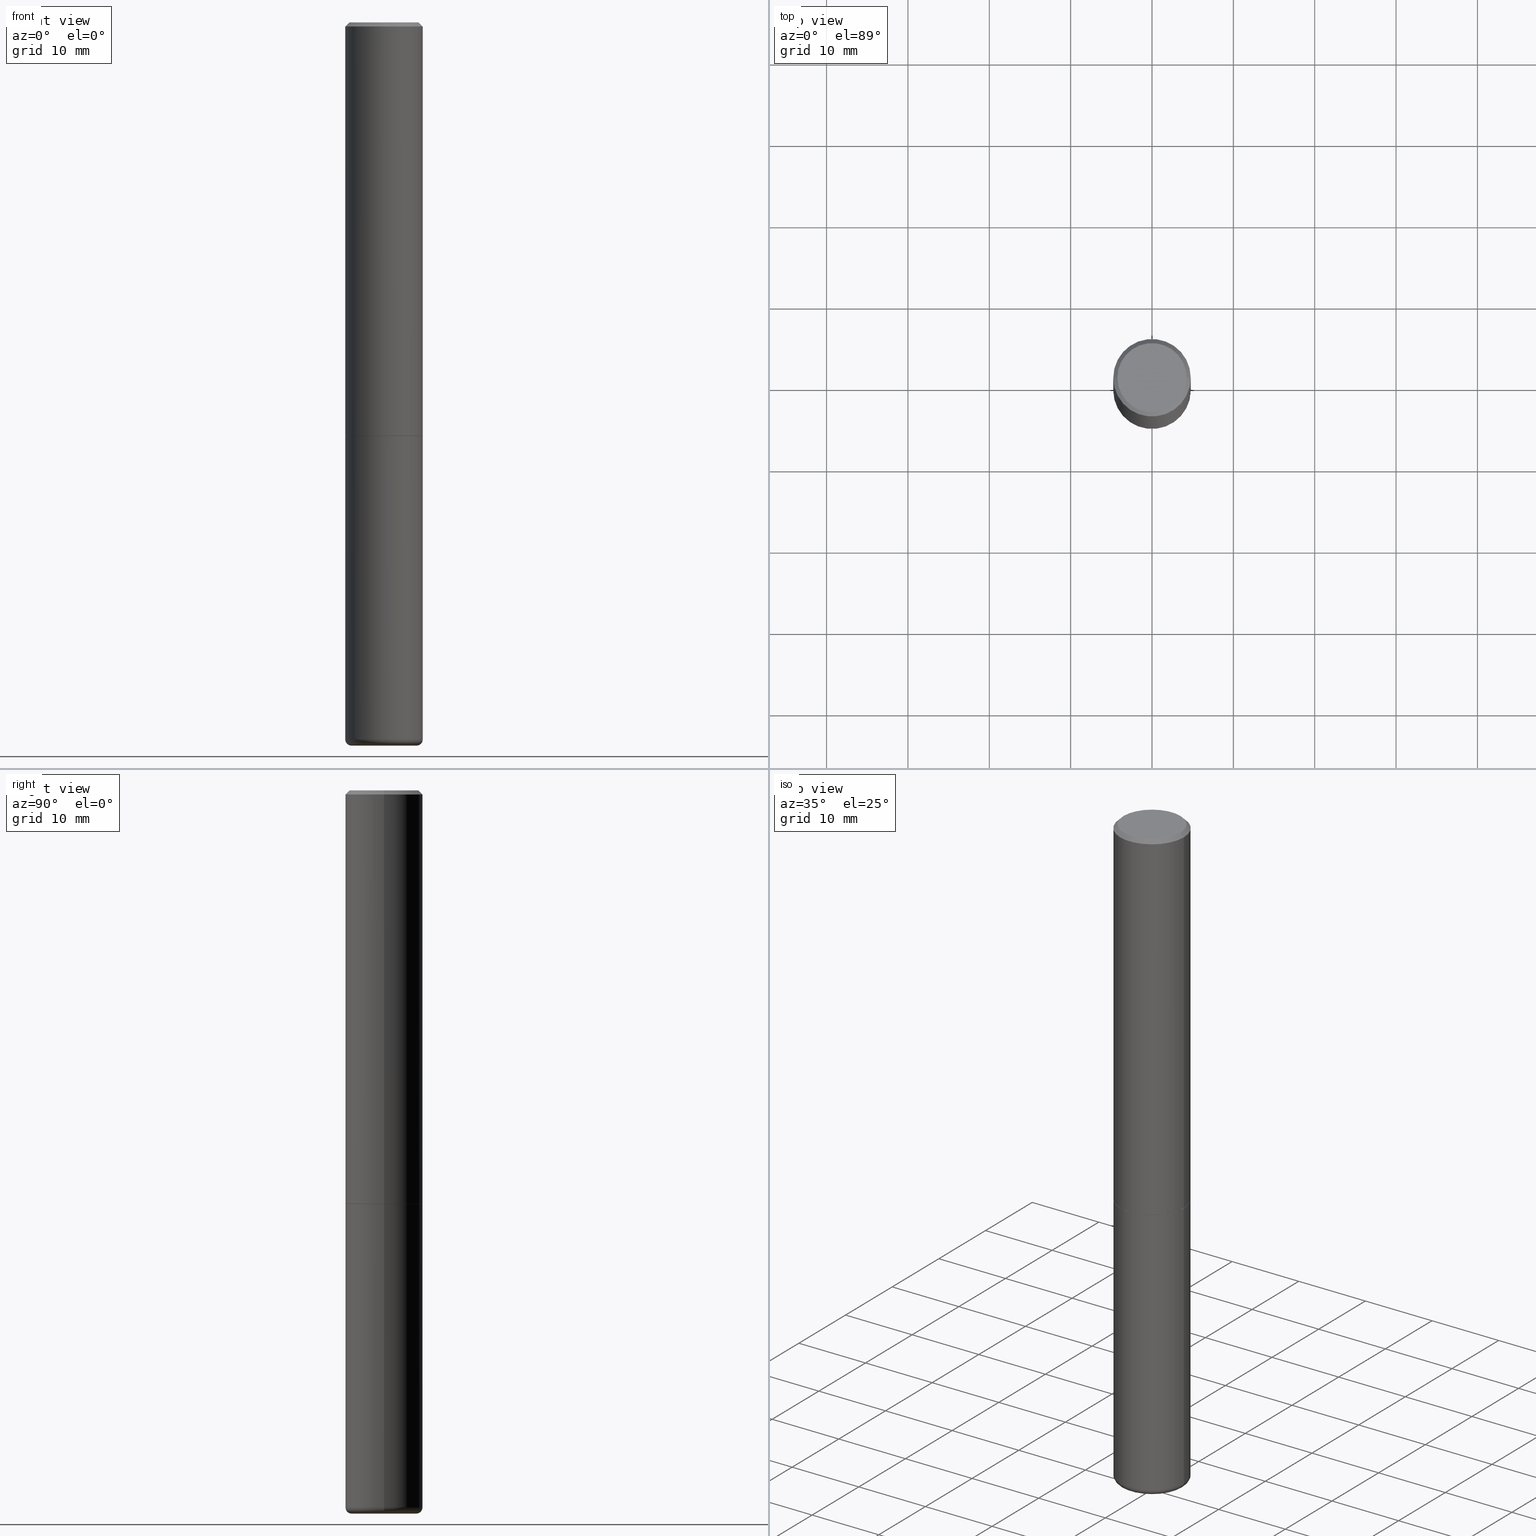
[diagram: canonical four-view strip — front | top / right | iso, engineering-drawing reading convention]
A machine part, canonical four-view strip (front | top / right | iso — engineering-drawing reading convention). The complete STEP part file that produces these views, byte-faithful:
ISO-10303-21;
HEADER;
FILE_DESCRIPTION (( 'STEP AP203' ),
    '1' );
FILE_NAME ('77171.STEP',
    '2024-03-06T16:16:29',
    ( '' ),
    ( '' ),
    'SwSTEP 2.0',
    'SolidWorks 2023',
    '' );
FILE_SCHEMA (( 'CONFIG_CONTROL_DESIGN' ));
ENDSEC;

DATA;
#1 = LINE ( 'NONE', #126, #357 ) ;
#2 = EDGE_CURVE ( 'NONE', #250, #55, #312, .T. ) ;
#3 = VERTEX_POINT ( 'NONE', #235 ) ;
#4 = CARTESIAN_POINT ( 'NONE',  ( 4.890937612370272633E-29, -6.982962677686290376E-15, -1.999999999999999778 ) ) ;
#5 = DATE_AND_TIME ( #254, #306 ) ;
#6 = ADVANCED_BREP_SHAPE_REPRESENTATION ( '77171', ( #276, #275, #336 ), #118 ) ;
#7 = DATE_TIME_ROLE ( 'classification_date' ) ;
#8 = ADVANCED_FACE ( 'NONE', ( #213 ), #304, .T. ) ;
#9 = CIRCLE ( 'NONE', #418, 0.1865000000000000546 ) ;
#10 = DIRECTION ( 'NONE',  ( -2.445468806185136597E-29, 3.491481338843145583E-15, 1.000000000000000000 ) ) ;
#11 = DIRECTION ( 'NONE',  ( -2.438088387897960049E-29, 3.491481338843145188E-15, 1.000000000000000000 ) ) ;
#12 = DIRECTION ( 'NONE',  ( 1.000000000000000000, -6.982962677686261189E-15, 0.000000000000000000 ) ) ;
#13 = VECTOR ( 'NONE', #394, 39.37007874015748143 ) ;
#14 = CARTESIAN_POINT ( 'NONE',  ( -0.1575000000000000289, -1.099633543696355521E-14, -3.469999999999999751 ) ) ;
#15 = FACE_OUTER_BOUND ( 'NONE', #153, .T. ) ;
#16 = APPLICATION_PROTOCOL_DEFINITION ( 'international standard', 'config_control_design', 1994, #381 ) ;
#17 = AXIS2_PLACEMENT_3D ( 'NONE', #110, #214, #148 ) ;
#18 = CARTESIAN_POINT ( 'NONE',  ( 0.1675000000000000655, -1.252653207992878880E-15, -3.414809992079482230E-17 ) ) ;
#19 = CARTESIAN_POINT ( 'NONE',  ( -0.1875000000000000555, 1.239475875289312104E-15, -0.02000000000000003858 ) ) ;
#20 = DIRECTION ( 'NONE',  ( -2.445468806185136597E-29, 3.491481338843145583E-15, 1.000000000000000000 ) ) ;
#21 = ORIENTED_EDGE ( 'NONE', *, *, #2, .F. ) ;
#22 = LINE ( 'NONE', #19, #281 ) ;
#23 = AXIS2_PLACEMENT_3D ( 'NONE', #303, #365, #166 ) ;
#24 = ORIENTED_EDGE ( 'NONE', *, *, #280, .F. ) ;
#25 = FACE_OUTER_BOUND ( 'NONE', #154, .T. ) ;
#26 = ORIENTED_EDGE ( 'NONE', *, *, #130, .F. ) ;
#27 = DIRECTION ( 'NONE',  ( -2.445468806185136597E-29, 3.491481338843145583E-15, 1.000000000000000000 ) ) ;
#28 = ORIENTED_EDGE ( 'NONE', *, *, #343, .T. ) ;
#29 = ORIENTED_EDGE ( 'NONE', *, *, #308, .T. ) ;
#30 = CC_DESIGN_DATE_AND_TIME_ASSIGNMENT ( #351, #7, ( #377 ) ) ;
#31 = CARTESIAN_POINT ( 'NONE',  ( -0.1675000000000000655, 1.204561061900881244E-15, -3.414809992081159176E-17 ) ) ;
#32 = CARTESIAN_POINT ( 'NONE',  ( 8.485776757462424574E-29, -1.211544024578571439E-14, -3.469999999999999751 ) ) ;
#33 = ORIENTED_EDGE ( 'NONE', *, *, #301, .T. ) ;
#34 = CIRCLE ( 'NONE', #411, 0.1875000000000000555 ) ;
#35 = CARTESIAN_POINT ( 'NONE',  ( 8.559140821647976968E-29, -1.222018468595100619E-14, -3.499999999999999112 ) ) ;
#36 = DIRECTION ( 'NONE',  ( -2.445468806185136597E-29, 3.491481338843145583E-15, 1.000000000000000000 ) ) ;
#37 = FACE_OUTER_BOUND ( 'NONE', #245, .T. ) ;
#38 = AXIS2_PLACEMENT_3D ( 'NONE', #53, #191, #410 ) ;
#39 = DIRECTION ( 'NONE',  ( -2.445468806185136597E-29, 3.491481338843145583E-15, 1.000000000000000000 ) ) ;
#40 = DIRECTION ( 'NONE',  ( 1.000000000000000000, -6.982962677686265922E-15, 4.876176775795935793E-29 ) ) ;
#41 = CIRCLE ( 'NONE', #178, 0.1875000000000000278 ) ;
#42 = APPROVAL_PERSON_ORGANIZATION ( #287, #400, #392 ) ;
#43 = DIRECTION ( 'NONE',  ( 7.105427357601001859E-15, 1.000000000000000000, -3.491481338843145583E-15 ) ) ;
#44 = ORIENTED_EDGE ( 'NONE', *, *, #280, .T. ) ;
#45 = LINE ( 'NONE', #175, #151 ) ;
#46 = ORIENTED_EDGE ( 'NONE', *, *, #88, .T. ) ;
#47 = AXIS2_PLACEMENT_3D ( 'NONE', #87, #50, #93 ) ;
#48 = ADVANCED_FACE ( 'NONE', ( #341 ), #49, .T. ) ;
#49 = CYLINDRICAL_SURFACE ( 'NONE', #239, 0.1875000000000000278 ) ;
#50 = DIRECTION ( 'NONE',  ( 2.445468806185136597E-29, -3.491481338843145583E-15, -1.000000000000000000 ) ) ;
#51 = EDGE_CURVE ( 'NONE', #288, #52, #22, .T. ) ;
#52 = VERTEX_POINT ( 'NONE', #309 ) ;
#53 = CARTESIAN_POINT ( 'NONE',  ( 4.890937612370272633E-29, -6.982962677686290376E-15, -1.999999999999999778 ) ) ;
#54 = CIRCLE ( 'NONE', #17, 0.02999999999999967970 ) ;
#55 = VERTEX_POINT ( 'NONE', #374 ) ;
#56 = CARTESIAN_POINT ( 'NONE',  ( 0.1875000000000000555, -1.356173001359025663E-15, -0.02000000000000003858 ) ) ;
#57 = PRODUCT_DEFINITION_SHAPE ( 'NONE', 'NONE',  #368 ) ;
#58 = EDGE_CURVE ( 'NONE', #55, #237, #409, .T. ) ;
#59 = ORIENTED_EDGE ( 'NONE', *, *, #387, .T. ) ;
#60 = CARTESIAN_POINT ( 'NONE',  ( -0.1875000000000000278, -8.216933832185813748E-15, -1.999999999999999778 ) ) ;
#61 = VERTEX_POINT ( 'NONE', #401 ) ;
#62 = EDGE_LOOP ( 'NONE', ( #320, #388, #149, #353 ) ) ;
#63 = DIRECTION ( 'NONE',  ( 1.000000000000000000, -6.982962677686266711E-15, 0.000000000000000000 ) ) ;
#64 = VECTOR ( 'NONE', #108, 39.37007874015748143 ) ;
#65 = VERTEX_POINT ( 'NONE', #273 ) ;
#66 = AXIS2_PLACEMENT_3D ( 'NONE', #208, #244, #342 ) ;
#67 = DIRECTION ( 'NONE',  ( 1.000000000000000000, -6.982962677686266711E-15, 4.876176775795936914E-29 ) ) ;
#68 = DIRECTION ( 'NONE',  ( -2.445468806185136597E-29, 3.491481338843145583E-15, 1.000000000000000000 ) ) ;
#69 = VECTOR ( 'NONE', #71, 39.37007874015748143 ) ;
#70 = APPLICATION_PROTOCOL_DEFINITION ( 'international standard', 'config_control_design', 1994, #283 ) ;
#71 = DIRECTION ( 'NONE',  ( -2.445468806185136877E-29, 3.491481338843145188E-15, 1.000000000000000000 ) ) ;
#72 = PERSON_AND_ORGANIZATION ( #248, #102 ) ;
#73 = DIRECTION ( 'NONE',  ( -2.445468806185136597E-29, 3.491481338843145583E-15, 1.000000000000000000 ) ) ;
#74 = CIRCLE ( 'NONE', #383, 0.1575000000000000289 ) ;
#75 = APPROVAL_PERSON_ORGANIZATION ( #72, #202, #163 ) ;
#76 = DIRECTION ( 'NONE',  ( -2.445468806185136597E-29, 3.491481338843145583E-15, 1.000000000000000000 ) ) ;
#77 = LENGTH_MEASURE_WITH_UNIT ( LENGTH_MEASURE( 0.02539999999999999897 ), #139 );
#78 = DIRECTION ( 'NONE',  ( 1.000000000000000000, -6.982962677686265922E-15, 0.000000000000000000 ) ) ;
#79 = DIRECTION ( 'NONE',  ( 0.7071067811865472397, -7.319954787623254468E-15, -0.7071067811865477948 ) ) ;
#80 = AXIS2_PLACEMENT_3D ( 'NONE', #161, #10, #358 ) ;
#81 = DIRECTION ( 'NONE',  ( 2.445468806185136597E-29, -3.491481338843145583E-15, -1.000000000000000000 ) ) ;
#82 = CARTESIAN_POINT ( 'NONE',  ( 0.1875000000000001388, -1.309305502066175994E-15, 9.142831454617388019E-30 ) ) ;
#83 = VERTEX_POINT ( 'NONE', #242 ) ;
#84 = CARTESIAN_POINT ( 'NONE',  ( 8.350811314681758556E-46, -1.192274536304357760E-31, -3.414809992080329023E-17 ) ) ;
#85 = EDGE_LOOP ( 'NONE', ( #86, #347 ) ) ;
#86 = ORIENTED_EDGE ( 'NONE', *, *, #127, .T. ) ;
#87 = CARTESIAN_POINT ( 'NONE',  ( 4.890937612370282792E-31, -6.982962677686303935E-17, -0.02000000000000003858 ) ) ;
#88 = EDGE_CURVE ( 'NONE', #237, #52, #34, .T. ) ;
#89 = CLOSED_SHELL ( 'NONE', ( #188, #106, #216, #8, #286, #393, #356, #172 ) ) ;
#90 = VECTOR ( 'NONE', #173, 39.37007874015748143 ) ;
#91 = AXIS2_PLACEMENT_3D ( 'NONE', #193, #76, #78 ) ;
#92 = VERTEX_POINT ( 'NONE', #203 ) ;
#93 = DIRECTION ( 'NONE',  ( -1.000000000000000000, 6.982962677686265922E-15, 0.000000000000000000 ) ) ;
#94 = PERSON_AND_ORGANIZATION_ROLE ( 'classification_officer' ) ;
#95 = ORIENTED_EDGE ( 'NONE', *, *, #51, .F. ) ;
#96 = UNCERTAINTY_MEASURE_WITH_UNIT (LENGTH_MEASURE( 1.000000000000000082E-05 ), #238, 'distance_accuracy_value', 'NONE');
#97 = CALENDAR_DATE ( 2024, 6, 3 ) ;
#98 = PERSON_AND_ORGANIZATION_ROLE ( 'creator' ) ;
#99 = VERTEX_POINT ( 'NONE', #18 ) ;
#100 = CIRCLE ( 'NONE', #23, 0.1865000000000000546 ) ;
#101 = EDGE_CURVE ( 'NONE', #61, #215, #54, .T. ) ;
#102 = ORGANIZATION ( 'UNSPECIFIED', 'UNSPECIFIED', '' ) ;
#103 = PERSON_AND_ORGANIZATION ( #248, #102 ) ;
#104 = CARTESIAN_POINT ( 'NONE',  ( 4.890937612370272633E-29, -6.982962677686290376E-15, -1.999999999999999778 ) ) ;
#105 = DIRECTION ( 'NONE',  ( 1.000000000000000000, -6.982962677686265922E-15, 0.000000000000000000 ) ) ;
#106 = ADVANCED_FACE ( 'NONE', ( #170 ), #116, .T. ) ;
#107 = AXIS2_PLACEMENT_3D ( 'NONE', #14, #43, #311 ) ;
#108 = DIRECTION ( 'NONE',  ( 0.7071067811865957564, -2.468850131082761932E-15, 0.7071067811864992780 ) ) ;
#109 = DIRECTION ( 'NONE',  ( -2.445468806185136597E-29, 3.491481338843145583E-15, 1.000000000000000000 ) ) ;
#110 = CARTESIAN_POINT ( 'NONE',  ( 0.1575000000000000289, -1.321525686752130109E-14, -3.469999999999999751 ) ) ;
#111 = FACE_OUTER_BOUND ( 'NONE', #205, .T. ) ;
#112 = CARTESIAN_POINT ( 'NONE',  ( 0.1865000000000000546, -8.285285217074779370E-15, -1.999999999999999778 ) ) ;
#113 = DIRECTION ( 'NONE',  ( 1.000000000000000000, -6.982962677686263555E-15, 4.883557194083111219E-29 ) ) ;
#114 = LINE ( 'NONE', #375, #338 ) ;
#115 = DIRECTION ( 'NONE',  ( -1.000000000000000000, 6.982962677686265922E-15, 0.000000000000000000 ) ) ;
#116 = CYLINDRICAL_SURFACE ( 'NONE', #398, 0.1875000000000001388 ) ;
#117 = AXIS2_PLACEMENT_3D ( 'NONE', #199, #156, #291 ) ;
#118 =( GEOMETRIC_REPRESENTATION_CONTEXT ( 3 ) GLOBAL_UNCERTAINTY_ASSIGNED_CONTEXT ( ( #96 ) ) GLOBAL_UNIT_ASSIGNED_CONTEXT ( ( #238, #207, #310 ) ) REPRESENTATION_CONTEXT ( 'NONE', 'WORKASPACE' ) );
#119 = ORIENTED_EDGE ( 'NONE', *, *, #261, .F. ) ;
#120 = ORIENTED_EDGE ( 'NONE', *, *, #301, .F. ) ;
#121 = CC_DESIGN_PERSON_AND_ORGANIZATION_ASSIGNMENT ( #300, #98, ( #293 ) ) ;
#122 = CARTESIAN_POINT ( 'NONE',  ( 4.890937612370272633E-29, -6.982962677686290376E-15, -1.999999999999999778 ) ) ;
#123 = DIRECTION ( 'NONE',  ( 1.000000000000000000, -6.982962677686265922E-15, 4.875370901645438946E-29 ) ) ;
#124 = CIRCLE ( 'NONE', #403, 0.1675000000000000655 ) ;
#125 = PERSON_AND_ORGANIZATION ( #248, #102 ) ;
#126 = CARTESIAN_POINT ( 'NONE',  ( -0.1875000000000000278, 1.332267629550188046E-15, -9.223003294227947991E-30 ) ) ;
#127 = EDGE_CURVE ( 'NONE', #288, #99, #211, .T. ) ;
#128 = DESIGN_CONTEXT ( 'detailed design', #283, 'design' ) ;
#129 = DIRECTION ( 'NONE',  ( -2.445468806185136597E-29, 3.491481338843145583E-15, 1.000000000000000000 ) ) ;
#130 = EDGE_CURVE ( 'NONE', #65, #52, #45, .T. ) ;
#131 = APPROVAL_DATE_TIME ( #5, #400 ) ;
#132 = TOROIDAL_SURFACE ( 'NONE', #194, 0.1575000000000000289, 0.02999999999999969705 ) ;
#133 = DIRECTION ( 'NONE',  ( 1.000000000000000000, -6.982962677686269077E-15, 0.000000000000000000 ) ) ;
#134 = CC_DESIGN_PERSON_AND_ORGANIZATION_ASSIGNMENT ( #258, #395, ( #355 ) ) ;
#135 = APPROVAL_ROLE ( '' ) ;
#136 = CLOSED_SHELL ( 'NONE', ( #164, #267, #177, #48, #152, #243 ) ) ;
#137 = AXIS2_PLACEMENT_3D ( 'NONE', #362, #268, #133 ) ;
#138 = LOCAL_TIME ( 11, 16, 29.00000000000000000, #292 ) ;
#139 =( LENGTH_UNIT ( ) NAMED_UNIT ( * ) SI_UNIT ( $, .METRE. ) );
#140 = EDGE_CURVE ( 'NONE', #3, #92, #270, .T. ) ;
#141 = DIRECTION ( 'NONE',  ( 1.000000000000000000, -6.982962677686265922E-15, 0.000000000000000000 ) ) ;
#142 = ORIENTED_EDGE ( 'NONE', *, *, #345, .F. ) ;
#143 = CC_DESIGN_PERSON_AND_ORGANIZATION_ASSIGNMENT ( #200, #157, ( #368 ) ) ;
#144 = CIRCLE ( 'NONE', #158, 0.1875000000000002498 ) ;
#145 = CARTESIAN_POINT ( 'NONE',  ( 0.1875000000000000278, -1.309305502066175008E-15, 9.142831454617381013E-30 ) ) ;
#146 = EDGE_LOOP ( 'NONE', ( #318, #190, #417, #379 ) ) ;
#147 = CARTESIAN_POINT ( 'NONE',  ( 0.000000000000000000, 0.000000000000000000, 0.000000000000000000 ) ) ;
#148 = DIRECTION ( 'NONE',  ( 1.000000000000000000, -6.982962677686277755E-15, 0.000000000000000000 ) ) ;
#149 = ORIENTED_EDGE ( 'NONE', *, *, #405, .T. ) ;
#150 = PLANE ( 'NONE',  #321 ) ;
#151 = VECTOR ( 'NONE', #307, 39.37007874015748143 ) ;
#152 = ADVANCED_FACE ( 'NONE', ( #15 ), #389, .T. ) ;
#153 = EDGE_LOOP ( 'NONE', ( #326, #59, #369, #119 ) ) ;
#154 = EDGE_LOOP ( 'NONE', ( #44, #385 ) ) ;
#155 = EDGE_LOOP ( 'NONE', ( #33, #218, #372, #414 ) ) ;
#156 = DIRECTION ( 'NONE',  ( -2.445468806185136597E-29, 3.491481338843145583E-15, 1.000000000000000000 ) ) ;
#157 = PERSON_AND_ORGANIZATION_ROLE ( 'creator' ) ;
#158 = AXIS2_PLACEMENT_3D ( 'NONE', #390, #36, #196 ) ;
#159 = LOCAL_TIME ( 11, 16, 29.00000000000000000, #195 ) ;
#160 = CC_DESIGN_DATE_AND_TIME_ASSIGNMENT ( #386, #224, ( #368 ) ) ;
#161 = CARTESIAN_POINT ( 'NONE',  ( 4.890937612370272633E-29, -6.982962677686290376E-15, -1.999999999999999778 ) ) ;
#162 = CARTESIAN_POINT ( 'NONE',  ( 4.890937612370272633E-29, -6.982962677686290376E-15, -1.999999999999999778 ) ) ;
#163 = APPROVAL_ROLE ( '' ) ;
#164 = ADVANCED_FACE ( 'NONE', ( #111 ), #413, .T. ) ;
#165 = CONICAL_SURFACE ( 'NONE', #278, 0.1865000000000000546, 0.7853981633975165577 ) ;
#166 = DIRECTION ( 'NONE',  ( 1.000000000000000000, -6.982962677686265922E-15, 0.000000000000000000 ) ) ;
#167 = COORDINATED_UNIVERSAL_TIME_OFFSET ( 5, 0, .BEHIND. ) ;
#168 = DIRECTION ( 'NONE',  ( 1.000000000000000000, -6.982962677686261189E-15, 0.000000000000000000 ) ) ;
#169 = AXIS2_PLACEMENT_3D ( 'NONE', #408, #81, #115 ) ;
#170 = FACE_OUTER_BOUND ( 'NONE', #155, .T. ) ;
#171 = AXIS2_PLACEMENT_3D ( 'NONE', #162, #11, #40 ) ;
#172 = ADVANCED_FACE ( 'NONE', ( #212 ), #180, .F. ) ;
#173 = DIRECTION ( 'NONE',  ( -2.445468806185136877E-29, 3.491481338843145188E-15, 1.000000000000000000 ) ) ;
#174 = DIRECTION ( 'NONE',  ( -0.7071067811865472397, 2.468850131082253905E-15, -0.7071067811865477948 ) ) ;
#175 = CARTESIAN_POINT ( 'NONE',  ( -0.1875000000000001388, 1.332267629550188835E-15, -9.223003294227954997E-30 ) ) ;
#176 = CARTESIAN_POINT ( 'NONE',  ( 0.000000000000000000, 0.000000000000000000, 0.000000000000000000 ) ) ;
#177 = ADVANCED_FACE ( 'NONE', ( #25 ), #319, .F. ) ;
#178 = AXIS2_PLACEMENT_3D ( 'NONE', #360, #68, #63 ) ;
#179 = DIRECTION ( 'NONE',  ( -2.445468806185136597E-29, 3.491481338843145583E-15, 1.000000000000000000 ) ) ;
#180 = PLANE ( 'NONE',  #279 ) ;
#181 = DIRECTION ( 'NONE',  ( -2.445468806185136597E-29, 3.491481338843145583E-15, 1.000000000000000000 ) ) ;
#182 = CARTESIAN_POINT ( 'NONE',  ( 8.485776757462424574E-29, -1.211544024578571439E-14, -3.469999999999999751 ) ) ;
#183 = ORIENTED_EDGE ( 'NONE', *, *, #274, .F. ) ;
#184 = FACE_OUTER_BOUND ( 'NONE', #192, .T. ) ;
#185 = CIRCLE ( 'NONE', #370, 0.1875000000000000278 ) ;
#186 = ORIENTED_EDGE ( 'NONE', *, *, #308, .F. ) ;
#187 = CARTESIAN_POINT ( 'NONE',  ( 1.703753752425671468E-28, -7.863804744316868633E-17, -3.499999999999999112 ) ) ;
#188 = ADVANCED_FACE ( 'NONE', ( #184 ), #298, .T. ) ;
#189 = SHAPE_DEFINITION_REPRESENTATION ( #57, #6 ) ;
#190 = ORIENTED_EDGE ( 'NONE', *, *, #127, .F. ) ;
#191 = DIRECTION ( 'NONE',  ( 2.438088387897960049E-29, -3.491481338843145188E-15, -1.000000000000000000 ) ) ;
#192 = EDGE_LOOP ( 'NONE', ( #252, #284, #120, #21 ) ) ;
#193 = CARTESIAN_POINT ( 'NONE',  ( 4.890937612370282792E-31, -6.982962677686303935E-17, -0.02000000000000003858 ) ) ;
#194 = AXIS2_PLACEMENT_3D ( 'NONE', #404, #313, #113 ) ;
#195 = COORDINATED_UNIVERSAL_TIME_OFFSET ( 5, 0, .BEHIND. ) ;
#196 = DIRECTION ( 'NONE',  ( 1.000000000000000000, -6.982962677686269077E-15, 0.000000000000000000 ) ) ;
#197 = APPROVAL ( #231, 'UNSPECIFIED' ) ;
#198 = COORDINATED_UNIVERSAL_TIME_OFFSET ( 5, 0, .BEHIND. ) ;
#199 = CARTESIAN_POINT ( 'NONE',  ( 8.559140821647976968E-29, -1.222018468595100619E-14, -3.499999999999999112 ) ) ;
#200 = PERSON_AND_ORGANIZATION ( #248, #102 ) ;
#201 = APPROVAL_STATUS ( 'not_yet_approved' ) ;
#202 = APPROVAL ( #201, 'UNSPECIFIED' ) ;
#203 = CARTESIAN_POINT ( 'NONE',  ( -0.1874999999999998335, -1.078317261623552812E-14, -3.469999999999999751 ) ) ;
#204 = CIRCLE ( 'NONE', #117, 0.1575000000000000289 ) ;
#205 = EDGE_LOOP ( 'NONE', ( #272, #28, #24, #285 ) ) ;
#206 = CC_DESIGN_APPROVAL ( #197, ( #368 ) ) ;
#207 =( NAMED_UNIT ( * ) PLANE_ANGLE_UNIT ( ) SI_UNIT ( $, .RADIAN. ) );
#208 = CARTESIAN_POINT ( 'NONE',  ( 8.350811314681758556E-46, -1.192274536304357760E-31, -3.414809992080329023E-17 ) ) ;
#209 = CC_DESIGN_PERSON_AND_ORGANIZATION_ASSIGNMENT ( #225, #359, ( #293 ) ) ;
#210 = CARTESIAN_POINT ( 'NONE',  ( 4.890937612370282792E-31, -6.982962677686303935E-17, -0.02000000000000003858 ) ) ;
#211 = CIRCLE ( 'NONE', #66, 0.1675000000000000655 ) ;
#212 = FACE_OUTER_BOUND ( 'NONE', #85, .T. ) ;
#213 = FACE_OUTER_BOUND ( 'NONE', #146, .T. ) ;
#214 = DIRECTION ( 'NONE',  ( -6.982962677686266711E-15, -1.000000000000000000, 3.491481338843145583E-15 ) ) ;
#215 = VERTEX_POINT ( 'NONE', #415 ) ;
#216 = ADVANCED_FACE ( 'NONE', ( #251 ), #350, .T. ) ;
#217 = DIRECTION ( 'NONE',  ( 1.000000000000000000, -6.982962677686265922E-15, 4.876176775795935793E-29 ) ) ;
#218 = ORIENTED_EDGE ( 'NONE', *, *, #130, .T. ) ;
#219 = DIRECTION ( 'NONE',  ( 1.000000000000000000, -6.982962677686265922E-15, 0.000000000000000000 ) ) ;
#220 = CARTESIAN_POINT ( 'NONE',  ( 0.1865000000000000546, -8.285285217074779370E-15, -1.999999999999999778 ) ) ;
#221 = ORIENTED_EDGE ( 'NONE', *, *, #361, .F. ) ;
#222 = DIRECTION ( 'NONE',  ( 0.000000000000000000, 0.000000000000000000, 1.000000000000000000 ) ) ;
#223 = FACE_OUTER_BOUND ( 'NONE', #226, .T. ) ;
#224 = DATE_TIME_ROLE ( 'creation_date' ) ;
#225 = PERSON_AND_ORGANIZATION ( #248, #102 ) ;
#226 = EDGE_LOOP ( 'NONE', ( #229, #255, #183, #325 ) ) ;
#227 = AXIS2_PLACEMENT_3D ( 'NONE', #332, #39, #67 ) ;
#228 = EDGE_CURVE ( 'NONE', #99, #288, #124, .T. ) ;
#229 = ORIENTED_EDGE ( 'NONE', *, *, #337, .T. ) ;
#230 = DIRECTION ( 'NONE',  ( 1.000000000000000000, -6.982962677686265922E-15, 0.000000000000000000 ) ) ;
#231 = APPROVAL_STATUS ( 'not_yet_approved' ) ;
#232 = APPROVAL_DATE_TIME ( #266, #202 ) ;
#233 = DIRECTION ( 'NONE',  ( -2.445468806185136597E-29, 3.491481338843145583E-15, 1.000000000000000000 ) ) ;
#234 = DATE_AND_TIME ( #396, #391 ) ;
#235 = CARTESIAN_POINT ( 'NONE',  ( -0.1575000000000000289, -1.094212624668219072E-14, -3.499999999999999112 ) ) ;
#236 = DIRECTION ( 'NONE',  ( 1.000000000000000000, -6.982962677686266711E-15, 4.876176775795936914E-29 ) ) ;
#237 = VERTEX_POINT ( 'NONE', #56 ) ;
#238 =( CONVERSION_BASED_UNIT ( 'INCH', #77 ) LENGTH_UNIT ( ) NAMED_UNIT ( #302 ) );
#239 = AXIS2_PLACEMENT_3D ( 'NONE', #407, #179, #367 ) ;
#240 = CC_DESIGN_PERSON_AND_ORGANIZATION_ASSIGNMENT ( #125, #94, ( #377 ) ) ;
#241 = DIRECTION ( 'NONE',  ( -2.445468806185136597E-29, 3.491481338843145583E-15, 1.000000000000000000 ) ) ;
#242 = CARTESIAN_POINT ( 'NONE',  ( 0.1875000000000000278, -8.292268179752465385E-15, -1.999999999999999778 ) ) ;
#243 = ADVANCED_FACE ( 'NONE', ( #416 ), #150, .T. ) ;
#244 = DIRECTION ( 'NONE',  ( -2.445468806185136597E-29, 3.491481338843145583E-15, 1.000000000000000000 ) ) ;
#245 = EDGE_LOOP ( 'NONE', ( #26, #29, #294, #142 ) ) ;
#246 = DIRECTION ( 'NONE',  ( -2.445468806185136597E-29, 3.491481338843145583E-15, 1.000000000000000000 ) ) ;
#247 = VERTEX_POINT ( 'NONE', #282 ) ;
#248 = PERSON ( 'UNSPECIFIED', 'UNSPECIFIED', 'UNSPECIFIED', ('UNSPECIFIED'), ('UNSPECIFIED'), ('UNSPECIFIED') ) ;
#249 = DIRECTION ( 'NONE',  ( -2.445468806185136597E-29, 3.491481338843145583E-15, 1.000000000000000000 ) ) ;
#250 = VERTEX_POINT ( 'NONE', #220 ) ;
#251 = FACE_OUTER_BOUND ( 'NONE', #373, .T. ) ;
#252 = ORIENTED_EDGE ( 'NONE', *, *, #323, .T. ) ;
#253 = CIRCLE ( 'NONE', #91, 0.1875000000000000555 ) ;
#254 = CALENDAR_DATE ( 2024, 6, 3 ) ;
#255 = ORIENTED_EDGE ( 'NONE', *, *, #140, .T. ) ;
#256 = DIRECTION ( 'NONE',  ( 1.000000000000000000, 0.000000000000000000, 0.000000000000000000 ) ) ;
#257 = DIRECTION ( 'NONE',  ( -2.445468806185136877E-29, 3.491481338843145188E-15, 1.000000000000000000 ) ) ;
#258 = PERSON_AND_ORGANIZATION ( #248, #102 ) ;
#259 = VERTEX_POINT ( 'NONE', #60 ) ;
#260 = LINE ( 'NONE', #265, #13 ) ;
#261 = EDGE_CURVE ( 'NONE', #92, #215, #263, .T. ) ;
#262 = DIRECTION ( 'NONE',  ( 1.000000000000000000, -6.982962677686263555E-15, 4.883557194083111219E-29 ) ) ;
#263 = CIRCLE ( 'NONE', #344, 0.1875000000000000278 ) ;
#264 = EDGE_CURVE ( 'NONE', #99, #237, #114, .T. ) ;
#265 = CARTESIAN_POINT ( 'NONE',  ( -0.1865000000000000546, -5.657800475493702747E-15, -1.999999999999999778 ) ) ;
#266 = DATE_AND_TIME ( #305, #315 ) ;
#267 = ADVANCED_FACE ( 'NONE', ( #223 ), #132, .T. ) ;
#268 = DIRECTION ( 'NONE',  ( -2.445468806185136597E-29, 3.491481338843145583E-15, 1.000000000000000000 ) ) ;
#269 = COORDINATED_UNIVERSAL_TIME_OFFSET ( 5, 0, .BEHIND. ) ;
#270 = CIRCLE ( 'NONE', #107, 0.02999999999999967970 ) ;
#271 = EDGE_LOOP ( 'NONE', ( #328, #340 ) ) ;
#272 = ORIENTED_EDGE ( 'NONE', *, *, #274, .T. ) ;
#273 = CARTESIAN_POINT ( 'NONE',  ( -0.1875000000000002220, -2.192382782011963935E-15, -1.998999999999999666 ) ) ;
#274 = EDGE_CURVE ( 'NONE', #215, #92, #185, .T. ) ;
#275 = MANIFOLD_SOLID_BREP ( 'Body-Move/Copy2[2]', #89 ) ;
#276 = MANIFOLD_SOLID_BREP ( 'Body-Move/Copy2[1]', #136 ) ;
#277 = ORIENTED_EDGE ( 'NONE', *, *, #361, .T. ) ;
#278 = AXIS2_PLACEMENT_3D ( 'NONE', #4, #129, #105 ) ;
#279 = AXIS2_PLACEMENT_3D ( 'NONE', #346, #317, #348 ) ;
#280 = EDGE_CURVE ( 'NONE', #83, #259, #364, .T. ) ;
#281 = VECTOR ( 'NONE', #174, 39.37007874015748143 ) ;
#282 = CARTESIAN_POINT ( 'NONE',  ( -0.1865000000000000546, -5.652502021145479556E-15, -1.999999999999999778 ) ) ;
#283 = APPLICATION_CONTEXT ( 'configuration controlled 3d designs of mechanical parts and assemblies' ) ;
#284 = ORIENTED_EDGE ( 'NONE', *, *, #316, .T. ) ;
#285 = ORIENTED_EDGE ( 'NONE', *, *, #405, .F. ) ;
#286 = ADVANCED_FACE ( 'NONE', ( #37 ), #354, .T. ) ;
#287 = PERSON_AND_ORGANIZATION ( #248, #102 ) ;
#288 = VERTEX_POINT ( 'NONE', #31 ) ;
#289 = MECHANICAL_CONTEXT ( 'NONE', #381, 'mechanical' ) ;
#290 = CIRCLE ( 'NONE', #137, 0.1875000000000002498 ) ;
#291 = DIRECTION ( 'NONE',  ( 1.000000000000000000, -6.982962677686261189E-15, 0.000000000000000000 ) ) ;
#292 = COORDINATED_UNIVERSAL_TIME_OFFSET ( 5, 0, .BEHIND. ) ;
#293 = PRODUCT_DEFINITION_FORMATION_WITH_SPECIFIED_SOURCE ( 'ANY', '', #355, .NOT_KNOWN. ) ;
#294 = ORIENTED_EDGE ( 'NONE', *, *, #58, .T. ) ;
#295 = FACE_OUTER_BOUND ( 'NONE', #402, .T. ) ;
#296 = CALENDAR_DATE ( 2024, 6, 3 ) ;
#297 = EDGE_CURVE ( 'NONE', #259, #83, #41, .T. ) ;
#298 = CONICAL_SURFACE ( 'NONE', #314, 0.1865000000000000546, 0.7853981633975165577 ) ;
#299 = DIRECTION ( 'NONE',  ( -2.445468806185136597E-29, 3.491481338843145583E-15, 1.000000000000000000 ) ) ;
#300 = PERSON_AND_ORGANIZATION ( #248, #102 ) ;
#301 = EDGE_CURVE ( 'NONE', #55, #65, #290, .T. ) ;
#302 = DIMENSIONAL_EXPONENTS ( 1.000000000000000000, 0.000000000000000000, 0.000000000000000000, 0.000000000000000000, 0.000000000000000000, 0.000000000000000000, 0.000000000000000000 ) ;
#303 = CARTESIAN_POINT ( 'NONE',  ( 4.890937612370272633E-29, -6.982962677686290376E-15, -1.999999999999999778 ) ) ;
#304 = CONICAL_SURFACE ( 'NONE', #169, 0.1875000000000000555, 0.7853981633974479459 ) ;
#305 = CALENDAR_DATE ( 2024, 6, 3 ) ;
#306 = LOCAL_TIME ( 11, 16, 29.00000000000000000, #198 ) ;
#307 = DIRECTION ( 'NONE',  ( -2.445468806185136877E-29, 3.491481338843145188E-15, 1.000000000000000000 ) ) ;
#308 = EDGE_CURVE ( 'NONE', #65, #55, #144, .T. ) ;
#309 = CARTESIAN_POINT ( 'NONE',  ( -0.1875000000000000555, 1.239475875289312104E-15, -0.02000000000000003858 ) ) ;
#310 =( NAMED_UNIT ( * ) SI_UNIT ( $, .STERADIAN. ) SOLID_ANGLE_UNIT ( ) );
#311 = DIRECTION ( 'NONE',  ( -1.000000000000000000, 7.105427357601001859E-15, 0.000000000000000000 ) ) ;
#312 = LINE ( 'NONE', #112, #64 ) ;
#313 = DIRECTION ( 'NONE',  ( -2.445468806185136597E-29, 3.491481338843145583E-15, 1.000000000000000000 ) ) ;
#314 = AXIS2_PLACEMENT_3D ( 'NONE', #122, #246, #219 ) ;
#315 = LOCAL_TIME ( 11, 16, 29.00000000000000000, #167 ) ;
#316 = EDGE_CURVE ( 'NONE', #247, #65, #260, .T. ) ;
#317 = DIRECTION ( 'NONE',  ( 2.438088387897960049E-29, -3.491481338843145188E-15, -1.000000000000000000 ) ) ;
#318 = ORIENTED_EDGE ( 'NONE', *, *, #264, .F. ) ;
#319 = PLANE ( 'NONE',  #38 ) ;
#320 = ORIENTED_EDGE ( 'NONE', *, *, #343, .F. ) ;
#321 = AXIS2_PLACEMENT_3D ( 'NONE', #187, #384, #352 ) ;
#322 = CC_DESIGN_APPROVAL ( #400, ( #377 ) ) ;
#323 = EDGE_CURVE ( 'NONE', #250, #247, #9, .T. ) ;
#324 = CARTESIAN_POINT ( 'NONE',  ( 8.485776757462424574E-29, -1.211544024578571439E-14, -3.469999999999999751 ) ) ;
#325 = ORIENTED_EDGE ( 'NONE', *, *, #101, .F. ) ;
#326 = ORIENTED_EDGE ( 'NONE', *, *, #140, .F. ) ;
#327 = DIRECTION ( 'NONE',  ( 1.000000000000000000, -6.982962677686261189E-15, 0.000000000000000000 ) ) ;
#328 = ORIENTED_EDGE ( 'NONE', *, *, #337, .F. ) ;
#329 = AXIS2_PLACEMENT_3D ( 'NONE', #176, #181, #217 ) ;
#330 = APPROVAL_PERSON_ORGANIZATION ( #103, #197, #135 ) ;
#331 = APPROVAL_STATUS ( 'not_yet_approved' ) ;
#332 = CARTESIAN_POINT ( 'NONE',  ( 0.000000000000000000, 0.000000000000000000, 0.000000000000000000 ) ) ;
#333 = PRODUCT_RELATED_PRODUCT_CATEGORY ( 'detail', '', ( #355 ) ) ;
#334 = SECURITY_CLASSIFICATION_LEVEL ( 'unclassified' ) ;
#335 = PLANE ( 'NONE',  #171 ) ;
#336 = AXIS2_PLACEMENT_3D ( 'NONE', #147, #222, #256 ) ;
#337 = EDGE_CURVE ( 'NONE', #61, #3, #204, .T. ) ;
#338 = VECTOR ( 'NONE', #79, 39.37007874015748143 ) ;
#339 = CC_DESIGN_APPROVAL ( #202, ( #293 ) ) ;
#340 = ORIENTED_EDGE ( 'NONE', *, *, #387, .F. ) ;
#341 = FACE_OUTER_BOUND ( 'NONE', #62, .T. ) ;
#342 = DIRECTION ( 'NONE',  ( 1.000000000000000000, -6.982962677686265922E-15, 4.875370901645438946E-29 ) ) ;
#343 = EDGE_CURVE ( 'NONE', #92, #259, #1, .T. ) ;
#344 = AXIS2_PLACEMENT_3D ( 'NONE', #32, #20, #327 ) ;
#345 = EDGE_CURVE ( 'NONE', #52, #237, #253, .T. ) ;
#346 = CARTESIAN_POINT ( 'NONE',  ( 1.169646248512449792E-15, 0.1675000000000000655, -6.018971742166287723E-16 ) ) ;
#347 = ORIENTED_EDGE ( 'NONE', *, *, #228, .T. ) ;
#348 = DIRECTION ( 'NONE',  ( -1.000000000000000000, 6.982962677686265922E-15, -4.876176775795935793E-29 ) ) ;
#349 = ORIENTED_EDGE ( 'NONE', *, *, #228, .F. ) ;
#350 = CONICAL_SURFACE ( 'NONE', #47, 0.1875000000000000555, 0.7853981633974479459 ) ;
#351 = DATE_AND_TIME ( #296, #159 ) ;
#352 = DIRECTION ( 'NONE',  ( -1.000000000000000000, 6.982962677686265922E-15, -4.876176775795935793E-29 ) ) ;
#353 = ORIENTED_EDGE ( 'NONE', *, *, #297, .F. ) ;
#354 = CYLINDRICAL_SURFACE ( 'NONE', #227, 0.1875000000000001388 ) ;
#355 = PRODUCT ( '77171', '77171', '', ( #289 ) ) ;
#356 = ADVANCED_FACE ( 'NONE', ( #397 ), #335, .F. ) ;
#357 = VECTOR ( 'NONE', #257, 39.37007874015748143 ) ;
#358 = DIRECTION ( 'NONE',  ( 1.000000000000000000, -6.982962677686266711E-15, 0.000000000000000000 ) ) ;
#359 = PERSON_AND_ORGANIZATION_ROLE ( 'design_supplier' ) ;
#360 = CARTESIAN_POINT ( 'NONE',  ( 4.890937612370272633E-29, -6.982962677686290376E-15, -1.999999999999999778 ) ) ;
#361 = EDGE_CURVE ( 'NONE', #247, #250, #100, .T. ) ;
#362 = CARTESIAN_POINT ( 'NONE',  ( 4.888492143564087030E-29, -6.979471196347446580E-15, -1.998999999999999666 ) ) ;
#363 = APPROVAL_DATE_TIME ( #234, #197 ) ;
#364 = CIRCLE ( 'NONE', #80, 0.1875000000000000278 ) ;
#365 = DIRECTION ( 'NONE',  ( -2.445468806185136597E-29, 3.491481338843145583E-15, 1.000000000000000000 ) ) ;
#366 = EDGE_LOOP ( 'NONE', ( #378, #221 ) ) ;
#367 = DIRECTION ( 'NONE',  ( 1.000000000000000000, -6.982962677686265922E-15, 4.876176775795935793E-29 ) ) ;
#368 = PRODUCT_DEFINITION ( 'UNKNOWN', '', #293, #128 ) ;
#369 = ORIENTED_EDGE ( 'NONE', *, *, #101, .T. ) ;
#370 = AXIS2_PLACEMENT_3D ( 'NONE', #324, #241, #168 ) ;
#371 = CARTESIAN_POINT ( 'NONE',  ( 0.000000000000000000, 0.000000000000000000, 0.000000000000000000 ) ) ;
#372 = ORIENTED_EDGE ( 'NONE', *, *, #88, .F. ) ;
#373 = EDGE_LOOP ( 'NONE', ( #349, #380, #46, #95 ) ) ;
#374 = CARTESIAN_POINT ( 'NONE',  ( 0.1875000000000002498, -8.288776698413623955E-15, -1.998999999999999666 ) ) ;
#375 = CARTESIAN_POINT ( 'NONE',  ( 0.1875000000000000555, -1.356173001359025663E-15, -0.02000000000000003858 ) ) ;
#376 = AXIS2_PLACEMENT_3D ( 'NONE', #182, #249, #262 ) ;
#377 = SECURITY_CLASSIFICATION ( '', '', #334 ) ;
#378 = ORIENTED_EDGE ( 'NONE', *, *, #323, .F. ) ;
#379 = ORIENTED_EDGE ( 'NONE', *, *, #345, .T. ) ;
#380 = ORIENTED_EDGE ( 'NONE', *, *, #264, .T. ) ;
#381 = APPLICATION_CONTEXT ( 'configuration controlled 3d designs of mechanical parts and assemblies' ) ;
#382 = ORIENTED_EDGE ( 'NONE', *, *, #316, .F. ) ;
#383 = AXIS2_PLACEMENT_3D ( 'NONE', #35, #299, #12 ) ;
#384 = DIRECTION ( 'NONE',  ( 2.438088387897960049E-29, -3.491481338843145188E-15, -1.000000000000000000 ) ) ;
#385 = ORIENTED_EDGE ( 'NONE', *, *, #297, .T. ) ;
#386 = DATE_AND_TIME ( #97, #138 ) ;
#387 = EDGE_CURVE ( 'NONE', #3, #61, #74, .T. ) ;
#388 = ORIENTED_EDGE ( 'NONE', *, *, #261, .T. ) ;
#389 = TOROIDAL_SURFACE ( 'NONE', #376, 0.1575000000000000289, 0.02999999999999969705 ) ;
#390 = CARTESIAN_POINT ( 'NONE',  ( 4.888492143564087030E-29, -6.979471196347446580E-15, -1.998999999999999666 ) ) ;
#391 = LOCAL_TIME ( 11, 16, 29.00000000000000000, #269 ) ;
#392 = APPROVAL_ROLE ( '' ) ;
#393 = ADVANCED_FACE ( 'NONE', ( #295 ), #165, .T. ) ;
#394 = DIRECTION ( 'NONE',  ( -0.7071067811865957564, 7.493145998870527710E-15, 0.7071067811864992780 ) ) ;
#395 = PERSON_AND_ORGANIZATION_ROLE ( 'design_owner' ) ;
#396 = CALENDAR_DATE ( 2024, 6, 3 ) ;
#397 = FACE_OUTER_BOUND ( 'NONE', #366, .T. ) ;
#398 = AXIS2_PLACEMENT_3D ( 'NONE', #371, #109, #236 ) ;
#399 = CC_DESIGN_SECURITY_CLASSIFICATION ( #377, ( #293 ) ) ;
#400 = APPROVAL ( #331, 'UNSPECIFIED' ) ;
#401 = CARTESIAN_POINT ( 'NONE',  ( 0.1575000000000000289, -1.332000130768659288E-14, -3.499999999999999112 ) ) ;
#402 = EDGE_LOOP ( 'NONE', ( #382, #277, #412, #186 ) ) ;
#403 = AXIS2_PLACEMENT_3D ( 'NONE', #84, #27, #123 ) ;
#404 = CARTESIAN_POINT ( 'NONE',  ( 8.485776757462424574E-29, -1.211544024578571439E-14, -3.469999999999999751 ) ) ;
#405 = EDGE_CURVE ( 'NONE', #215, #83, #406, .T. ) ;
#406 = LINE ( 'NONE', #145, #69 ) ;
#407 = CARTESIAN_POINT ( 'NONE',  ( 0.000000000000000000, 0.000000000000000000, 0.000000000000000000 ) ) ;
#408 = CARTESIAN_POINT ( 'NONE',  ( 4.890937612370282792E-31, -6.982962677686303935E-17, -0.02000000000000003858 ) ) ;
#409 = LINE ( 'NONE', #82, #90 ) ;
#410 = DIRECTION ( 'NONE',  ( -1.000000000000000000, 6.982962677686265922E-15, -4.876176775795935793E-29 ) ) ;
#411 = AXIS2_PLACEMENT_3D ( 'NONE', #210, #73, #141 ) ;
#412 = ORIENTED_EDGE ( 'NONE', *, *, #2, .T. ) ;
#413 = CYLINDRICAL_SURFACE ( 'NONE', #329, 0.1875000000000000278 ) ;
#414 = ORIENTED_EDGE ( 'NONE', *, *, #58, .F. ) ;
#415 = CARTESIAN_POINT ( 'NONE',  ( 0.1874999999999998335, -1.342474574785188940E-14, -3.469999999999999751 ) ) ;
#416 = FACE_OUTER_BOUND ( 'NONE', #271, .T. ) ;
#417 = ORIENTED_EDGE ( 'NONE', *, *, #51, .T. ) ;
#418 = AXIS2_PLACEMENT_3D ( 'NONE', #104, #233, #230 ) ;
ENDSEC;
END-ISO-10303-21;
